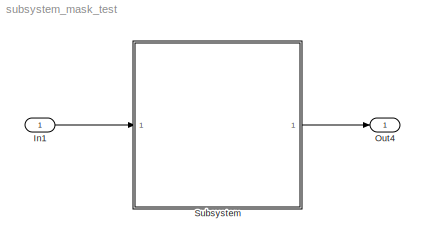
MODEL subsystem_mask_test
KIND model
BLOCK [Inport] In1
  IconDisplay = Port number
  PortDimensions = 1
  SID = 1
BLOCK [Outport] Out4
  IconDisplay = Port number
  SID = 97
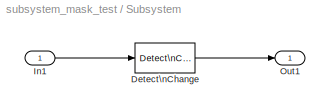
BLOCK [SubSystem] Subsystem
  Ports = [1, 1]
  RequestExecContextInheritance = off
  SID = 115
  TreatAsAtomicUnit = on
  Variant = off
BLOCK [Reference] Subsystem/Detect\nChange  REF=simulink/Logic and Bit\nOperations/Detect\nChange
  InputProcessing = Inherited
  OutDataTypeStr = boolean
  Ports = [1, 1]
  SID = 118
  SourceBlock = simulink/Logic and Bit\nOperations/Detect\nChange
  SourceProductBaseCode = SL
  SourceProductName = Simulink
  SourceType = Detect Change
  vinit = 0
BLOCK [Inport] Subsystem/In1
  IconDisplay = Port number
  SID = 116
BLOCK [Outport] Subsystem/Out1
  IconDisplay = Port number
  SID = 117
LINE In1:1 -> Subsystem:1
LINE Subsystem/Detect\nChange:1 -> Subsystem/Out1:1
LINE Subsystem/In1:1 -> Subsystem/Detect\nChange:1
LINE Subsystem:1 -> Out4:1
